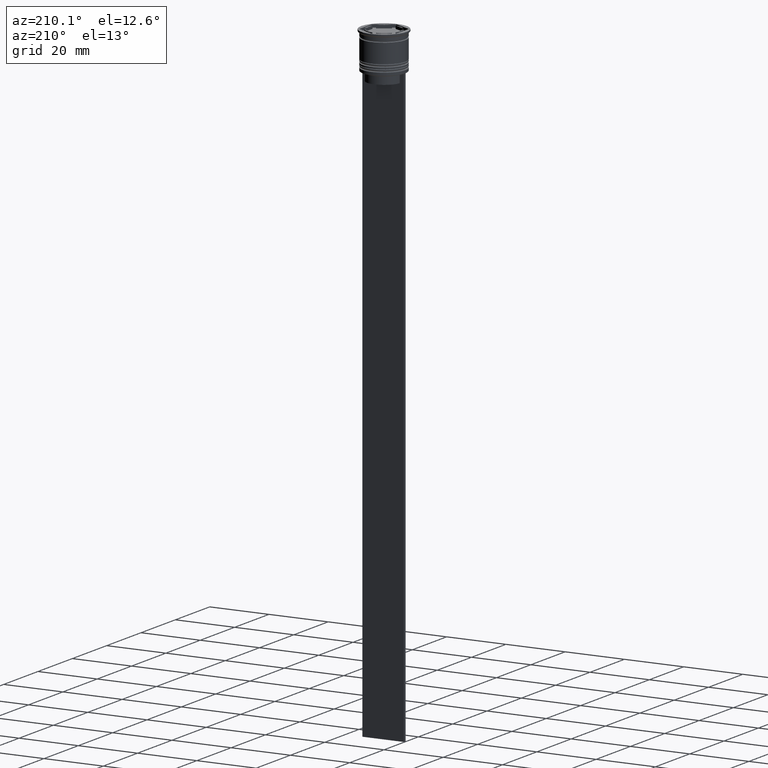
[diagram: clean part render]
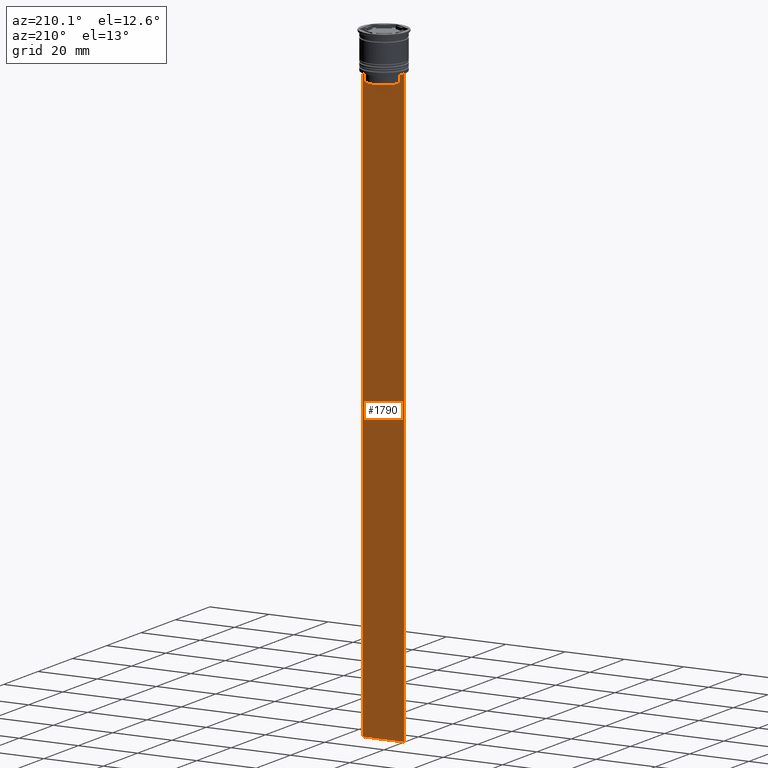
[diagram: same view with one face highlighted and labeled with its STEP entity id]
A machine part, auxiliary view. The second image highlights one B-rep face of the part: STEP entity #1790.
In plain terms, the highlighted planar face has unit normal (0, -1, -0).
Its self-contained STEP definition (entity closure, byte-faithful):
#17 = ORIENTED_EDGE ( 'NONE', *, *, #1366, .T. ) ;
#47 = CARTESIAN_POINT ( 'NONE',  ( 0.000000000000000000, 0.4999999999999978351, -15.50000000000000000 ) ) ;
#88 = VECTOR ( 'NONE', #1351, 1000.000000000000000 ) ;
#93 = EDGE_LOOP ( 'NONE', ( #1050, #1291, #1121, #1852, #975, #742, #2164, #1991, #17, #2280 ) ) ;
#114 = CARTESIAN_POINT ( 'NONE',  ( 5.627832620112292794, 0.4999999999999978351, 0.000000000000000000 ) ) ;
#119 = LINE ( 'NONE', #1033, #1146 ) ;
#131 = VECTOR ( 'NONE', #1057, 1000.000000000000000 ) ;
#150 = VERTEX_POINT ( 'NONE', #2169 ) ;
#174 = EDGE_CURVE ( 'NONE', #249, #2072, #557, .T. ) ;
#236 = CARTESIAN_POINT ( 'NONE',  ( 5.795128760752291441, 0.4999999999999978351, -12.83336023406855020 ) ) ;
#249 = VERTEX_POINT ( 'NONE', #798 ) ;
#255 = VERTEX_POINT ( 'NONE', #1520 ) ;
#310 = CARTESIAN_POINT ( 'NONE',  ( 7.000000000000012434, 0.4999999999999978351, -12.50000000000000000 ) ) ;
#340 = LINE ( 'NONE', #114, #1296 ) ;
#365 = VERTEX_POINT ( 'NONE', #2180 ) ;
#377 = VERTEX_POINT ( 'NONE', #1622 ) ;
#431 = B_SPLINE_CURVE_WITH_KNOTS ( 'NONE', 3,
 ( #2277, #1592, #1935, #2313 ),
 .UNSPECIFIED., .F., .F.,
 ( 4, 4 ),
 ( 0.01045365750109871796, 0.01116204421161398619 ),
 .UNSPECIFIED. ) ;
#488 = CARTESIAN_POINT ( 'NONE',  ( -5.627832620112292794, 0.4999999999999978351, -15.50000000000000000 ) ) ;
#509 = VECTOR ( 'NONE', #2203, 1000.000000000000000 ) ;
#557 = B_SPLINE_CURVE_WITH_KNOTS ( 'NONE', 3,
 ( #783, #236, #2229, #614 ),
 .UNSPECIFIED., .F., .F.,
 ( 4, 4 ),
 ( 0.02651134470867373347, 0.02721991123504337307 ),
 .UNSPECIFIED. ) ;
#595 = LINE ( 'NONE', #47, #509 ) ;
#614 = CARTESIAN_POINT ( 'NONE',  ( 6.129641098791995368, 0.4999999999999978351, -12.50000000000000000 ) ) ;
#621 = EDGE_CURVE ( 'NONE', #755, #1375, #1017, .T. ) ;
#742 = ORIENTED_EDGE ( 'NONE', *, *, #174, .T. ) ;
#755 = VERTEX_POINT ( 'NONE', #1405 ) ;
#767 = CARTESIAN_POINT ( 'NONE',  ( 6.129641098791995368, 0.4999999999999978351, -12.50000000000000000 ) ) ;
#783 = CARTESIAN_POINT ( 'NONE',  ( 5.627832620112292794, 0.4999999999999978351, -13.00000000000000000 ) ) ;
#798 = CARTESIAN_POINT ( 'NONE',  ( 5.627832620112292794, 0.4999999999999978351, -13.00000000000000000 ) ) ;
#805 = LINE ( 'NONE', #1532, #88 ) ;
#820 = PLANE ( 'NONE',  #1373 ) ;
#975 = ORIENTED_EDGE ( 'NONE', *, *, #1356, .T. ) ;
#1017 = LINE ( 'NONE', #1380, #1759 ) ;
#1033 = CARTESIAN_POINT ( 'NONE',  ( -5.627832620112292794, 0.4999999999999978351, 0.000000000000000000 ) ) ;
#1050 = ORIENTED_EDGE ( 'NONE', *, *, #1793, .T. ) ;
#1051 = CARTESIAN_POINT ( 'NONE',  ( 7.000000000000012434, 0.4999999999999978351, -212.5000000000000284 ) ) ;
#1056 = CARTESIAN_POINT ( 'NONE',  ( 5.627832620112292794, 0.4999999999999978351, -15.50000000000000000 ) ) ;
#1057 = DIRECTION ( 'NONE',  ( 1.000000000000000000, 0.000000000000000000, 0.000000000000000000 ) ) ;
#1121 = ORIENTED_EDGE ( 'NONE', *, *, #1814, .T. ) ;
#1125 = DIRECTION ( 'NONE',  ( 1.000000000000000000, 0.000000000000000000, 0.000000000000000000 ) ) ;
#1136 = CARTESIAN_POINT ( 'NONE',  ( 7.000000000000012434, 0.4999999999999978351, 1.535668847618198329 ) ) ;
#1146 = VECTOR ( 'NONE', #1599, 1000.000000000000000 ) ;
#1166 = LINE ( 'NONE', #1495, #2062 ) ;
#1200 = DIRECTION ( 'NONE',  ( 0.000000000000000000, 0.000000000000000000, -1.000000000000000000 ) ) ;
#1212 = CARTESIAN_POINT ( 'NONE',  ( 7.000000000000012434, 0.4999999999999978351, -212.5000000000000284 ) ) ;
#1277 = VERTEX_POINT ( 'NONE', #1056 ) ;
#1291 = ORIENTED_EDGE ( 'NONE', *, *, #1898, .T. ) ;
#1296 = VECTOR ( 'NONE', #1955, 1000.000000000000000 ) ;
#1351 = DIRECTION ( 'NONE',  ( 0.000000000000000000, 0.000000000000000000, -1.000000000000000000 ) ) ;
#1356 = EDGE_CURVE ( 'NONE', #1277, #249, #340, .T. ) ;
#1366 = EDGE_CURVE ( 'NONE', #1375, #377, #1394, .T. ) ;
#1373 = AXIS2_PLACEMENT_3D ( 'NONE', #1136, #2033, #1867 ) ;
#1375 = VERTEX_POINT ( 'NONE', #1051 ) ;
#1380 = CARTESIAN_POINT ( 'NONE',  ( 7.000000000000012434, 0.4999999999999978351, 1.535668847618198329 ) ) ;
#1394 = LINE ( 'NONE', #1212, #2029 ) ;
#1399 = LINE ( 'NONE', #310, #131 ) ;
#1405 = CARTESIAN_POINT ( 'NONE',  ( 7.000000000000012434, 0.4999999999999978351, -12.50000000000000000 ) ) ;
#1495 = CARTESIAN_POINT ( 'NONE',  ( 7.000000000000012434, 0.4999999999999978351, -12.50000000000000000 ) ) ;
#1520 = CARTESIAN_POINT ( 'NONE',  ( -6.999999999999987566, 0.4999999999999980571, -12.50000000000000000 ) ) ;
#1532 = CARTESIAN_POINT ( 'NONE',  ( -6.999999999999987566, 0.4999999999999978351, 1.535668847618198329 ) ) ;
#1592 = CARTESIAN_POINT ( 'NONE',  ( -5.962396146966409738, 0.4999999999999978351, -12.66669130573587054 ) ) ;
#1599 = DIRECTION ( 'NONE',  ( 0.000000000000000000, 0.000000000000000000, -1.000000000000000000 ) ) ;
#1622 = CARTESIAN_POINT ( 'NONE',  ( -6.999999999999987566, 0.4999999999999978351, -212.5000000000000284 ) ) ;
#1674 = EDGE_CURVE ( 'NONE', #255, #377, #805, .T. ) ;
#1705 = FACE_OUTER_BOUND ( 'NONE', #93, .T. ) ;
#1759 = VECTOR ( 'NONE', #1200, 1000.000000000000000 ) ;
#1790 = ADVANCED_FACE ( 'NONE', ( #1705 ), #820, .F. ) ;
#1793 = EDGE_CURVE ( 'NONE', #255, #365, #1399, .T. ) ;
#1814 = EDGE_CURVE ( 'NONE', #150, #1928, #119, .T. ) ;
#1852 = ORIENTED_EDGE ( 'NONE', *, *, #2124, .T. ) ;
#1867 = DIRECTION ( 'NONE',  ( 0.000000000000000000, 0.000000000000000000, -1.000000000000000000 ) ) ;
#1898 = EDGE_CURVE ( 'NONE', #365, #150, #431, .T. ) ;
#1928 = VERTEX_POINT ( 'NONE', #488 ) ;
#1935 = CARTESIAN_POINT ( 'NONE',  ( -5.795128834036803234, 0.4999999999999978351, -12.83336016107156574 ) ) ;
#1955 = DIRECTION ( 'NONE',  ( -0.000000000000000000, -0.000000000000000000, 1.000000000000000000 ) ) ;
#1991 = ORIENTED_EDGE ( 'NONE', *, *, #621, .T. ) ;
#2029 = VECTOR ( 'NONE', #2107, 1000.000000000000000 ) ;
#2033 = DIRECTION ( 'NONE',  ( 0.000000000000000000, -1.000000000000000000, -0.000000000000000000 ) ) ;
#2062 = VECTOR ( 'NONE', #1125, 1000.000000000000000 ) ;
#2072 = VERTEX_POINT ( 'NONE', #767 ) ;
#2107 = DIRECTION ( 'NONE',  ( -1.000000000000000000, 0.000000000000000000, 0.000000000000000000 ) ) ;
#2124 = EDGE_CURVE ( 'NONE', #1928, #1277, #595, .T. ) ;
#2164 = ORIENTED_EDGE ( 'NONE', *, *, #2193, .T. ) ;
#2169 = CARTESIAN_POINT ( 'NONE',  ( -5.627832620112292794, 0.4999999999999978351, -13.00000000000000000 ) ) ;
#2180 = CARTESIAN_POINT ( 'NONE',  ( -6.129641098791995368, 0.4999999999999978351, -12.50000000000000000 ) ) ;
#2193 = EDGE_CURVE ( 'NONE', #2072, #755, #1166, .T. ) ;
#2203 = DIRECTION ( 'NONE',  ( 1.000000000000000000, 0.000000000000000000, 0.000000000000000000 ) ) ;
#2229 = CARTESIAN_POINT ( 'NONE',  ( 5.962396079681187011, 0.4999999999999978351, -12.66669137279835411 ) ) ;
#2277 = CARTESIAN_POINT ( 'NONE',  ( -6.129641098791995368, 0.4999999999999978351, -12.50000000000000000 ) ) ;
#2280 = ORIENTED_EDGE ( 'NONE', *, *, #1674, .F. ) ;
#2313 = CARTESIAN_POINT ( 'NONE',  ( -5.627832620112292794, 0.4999999999999978351, -13.00000000000000000 ) ) ;